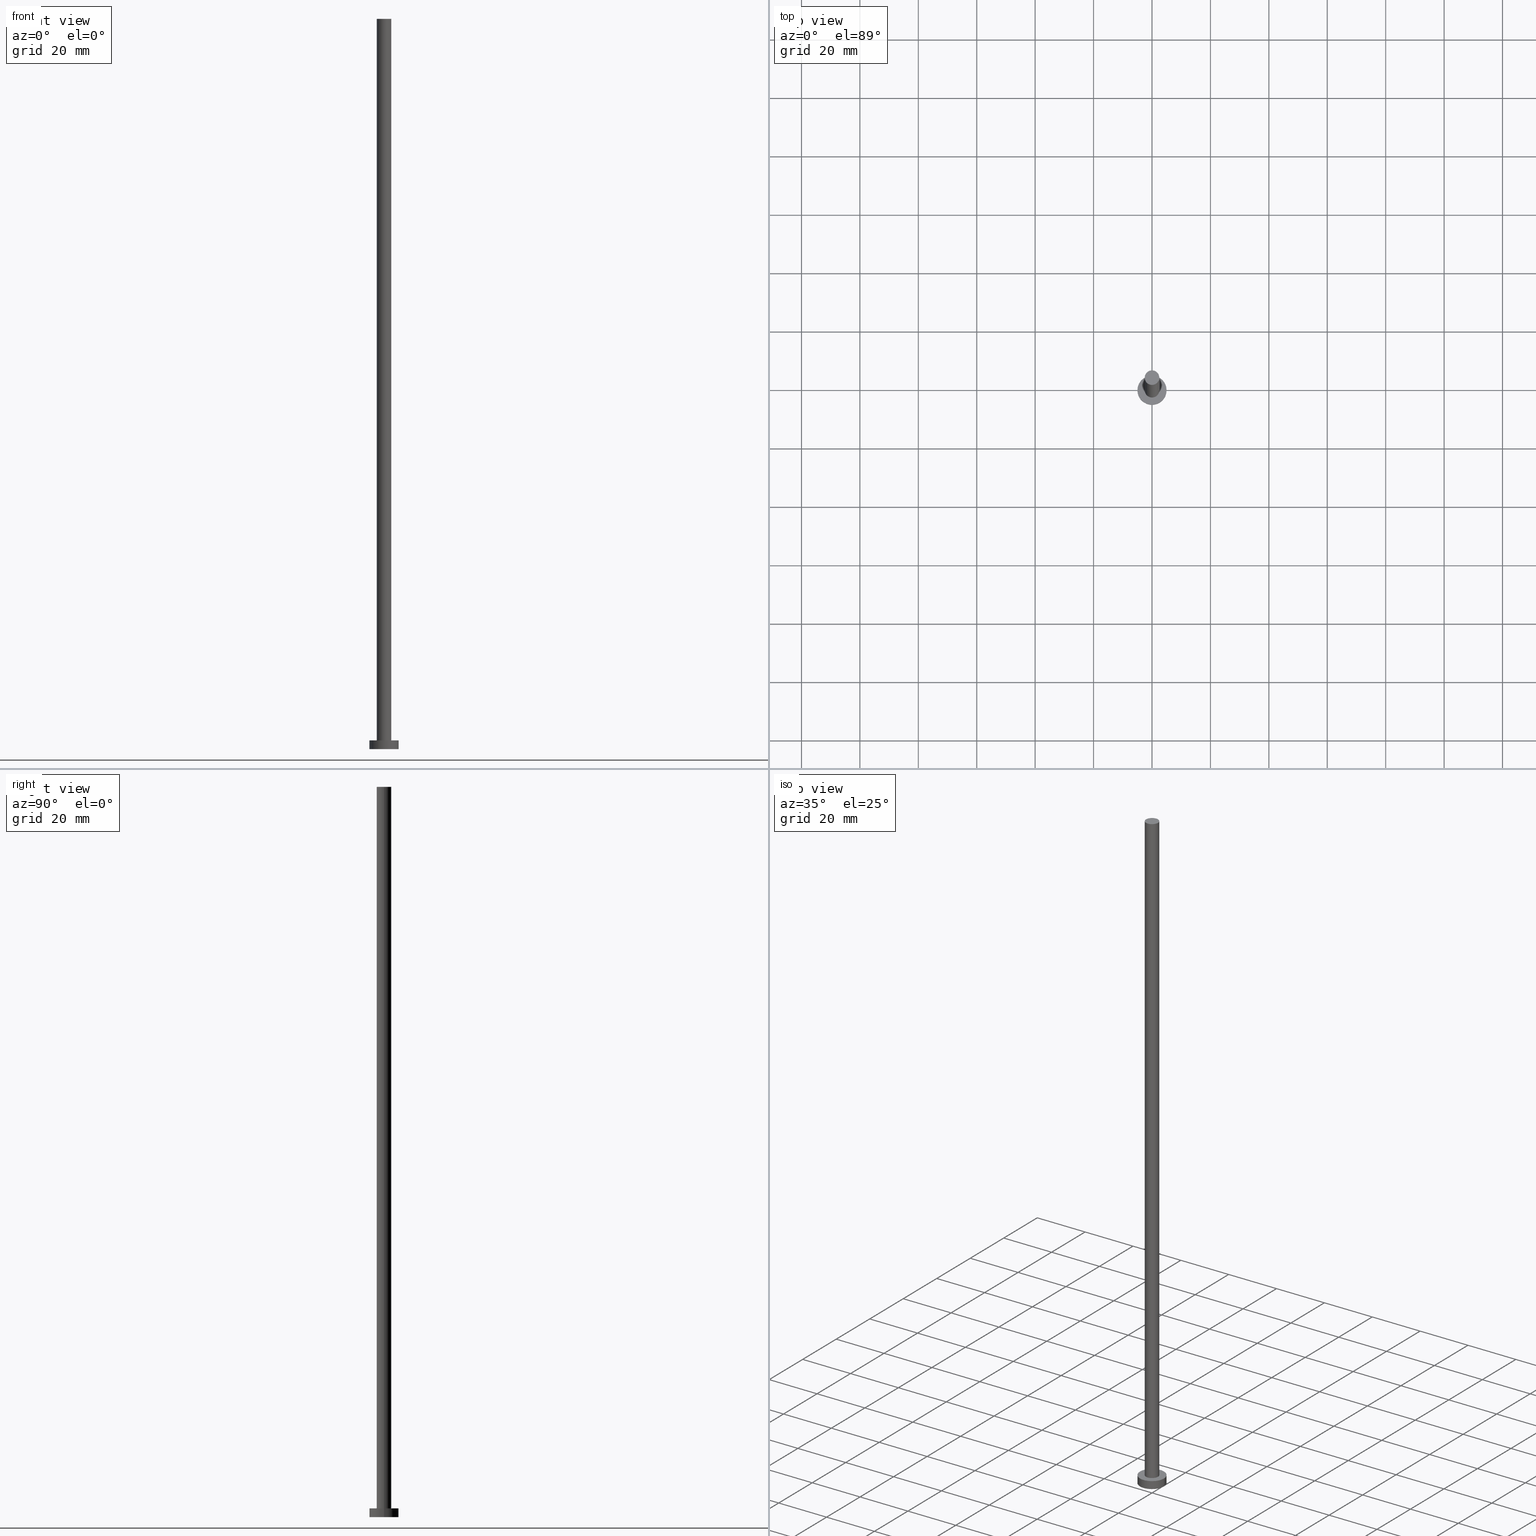
[diagram: canonical four-view strip — front | top / right | iso, engineering-drawing reading convention]
A machine part, canonical four-view strip (front | top / right | iso — engineering-drawing reading convention). The complete STEP part file that produces these views, byte-faithful:
ISO-10303-21;
HEADER;
FILE_DESCRIPTION (( 'STEP AP203' ),
    '1' );
FILE_NAME ('8118.STEP',
    '2023-02-13T13:26:06',
    ( '' ),
    ( '' ),
    'SwSTEP 2.0',
    'SolidWorks 2019',
    '' );
FILE_SCHEMA (( 'CONFIG_CONTROL_DESIGN' ));
ENDSEC;

DATA;
#1 = DIRECTION ( 'NONE',  ( -0.000000000000000000, -0.000000000000000000, -1.000000000000000000 ) ) ;
#2 = CARTESIAN_POINT ( 'NONE',  ( 0.000000000000000000, 0.000000000000000000, 3.000000000000000000 ) ) ;
#3 = FACE_OUTER_BOUND ( 'NONE', #27, .T. ) ;
#4 = DIRECTION ( 'NONE',  ( 1.000000000000000000, 0.000000000000000000, 0.000000000000000000 ) ) ;
#5 = EDGE_CURVE ( 'NONE', #228, #30, #32, .T. ) ;
#6 = PERSON_AND_ORGANIZATION ( #213, #133 ) ;
#7 = AXIS2_PLACEMENT_3D ( 'NONE', #176, #204, #21 ) ;
#8 = CALENDAR_DATE ( 2023, 13, 2 ) ;
#9 = ORIENTED_EDGE ( 'NONE', *, *, #242, .F. ) ;
#10 = APPROVAL_ROLE ( '' ) ;
#11 = EDGE_CURVE ( 'NONE', #211, #253, #171, .T. ) ;
#12 = DIRECTION ( 'NONE',  ( 0.000000000000000000, 0.000000000000000000, 1.000000000000000000 ) ) ;
#13 = PERSON_AND_ORGANIZATION_ROLE ( 'classification_officer' ) ;
#14 = CC_DESIGN_SECURITY_CLASSIFICATION ( #137, ( #181 ) ) ;
#15 = DIRECTION ( 'NONE',  ( 1.000000000000000000, 0.000000000000000000, 0.000000000000000000 ) ) ;
#16 = CARTESIAN_POINT ( 'NONE',  ( 0.000000000000000000, 0.000000000000000000, 250.0000000000000000 ) ) ;
#17 = CC_DESIGN_PERSON_AND_ORGANIZATION_ASSIGNMENT ( #209, #225, ( #234 ) ) ;
#18 = DIRECTION ( 'NONE',  ( -0.000000000000000000, -0.000000000000000000, -1.000000000000000000 ) ) ;
#19 = CARTESIAN_POINT ( 'NONE',  ( -5.000000000000000000, 0.000000000000000000, 3.000000000000000000 ) ) ;
#20 = DIRECTION ( 'NONE',  ( 1.000000000000000000, 0.000000000000000000, 0.000000000000000000 ) ) ;
#21 = DIRECTION ( 'NONE',  ( 1.000000000000000000, 0.000000000000000000, 0.000000000000000000 ) ) ;
#22 = AXIS2_PLACEMENT_3D ( 'NONE', #117, #140, #159 ) ;
#23 = DIRECTION ( 'NONE',  ( 0.000000000000000000, 0.000000000000000000, 1.000000000000000000 ) ) ;
#24 = APPROVAL_DATE_TIME ( #247, #91 ) ;
#25 = COORDINATED_UNIVERSAL_TIME_OFFSET ( 1, 0, .AHEAD. ) ;
#26 = CC_DESIGN_APPROVAL ( #72, ( #137 ) ) ;
#27 = EDGE_LOOP ( 'NONE', ( #69, #215, #145, #33 ) ) ;
#28 = ADVANCED_FACE ( 'NONE', ( #166 ), #71, .T. ) ;
#29 = DATE_TIME_ROLE ( 'classification_date' ) ;
#30 = VERTEX_POINT ( 'NONE', #252 ) ;
#31 = PERSON_AND_ORGANIZATION ( #213, #133 ) ;
#32 = CIRCLE ( 'NONE', #82, 2.500000000000000000 ) ;
#33 = ORIENTED_EDGE ( 'NONE', *, *, #5, .T. ) ;
#34 = ORIENTED_EDGE ( 'NONE', *, *, #205, .F. ) ;
#35 = LINE ( 'NONE', #111, #222 ) ;
#36 = CC_DESIGN_PERSON_AND_ORGANIZATION_ASSIGNMENT ( #106, #186, ( #181 ) ) ;
#37 = CARTESIAN_POINT ( 'NONE',  ( 0.000000000000000000, 0.000000000000000000, 3.000000000000000000 ) ) ;
#38 = APPROVAL_PERSON_ORGANIZATION ( #245, #91, #246 ) ;
#39 = FACE_OUTER_BOUND ( 'NONE', #81, .T. ) ;
#40 = CARTESIAN_POINT ( 'NONE',  ( -5.000000000000000000, 0.000000000000000000, 0.000000000000000000 ) ) ;
#41 = CARTESIAN_POINT ( 'NONE',  ( 0.000000000000000000, 0.000000000000000000, 3.000000000000000000 ) ) ;
#42 = CC_DESIGN_APPROVAL ( #91, ( #181 ) ) ;
#43 = CARTESIAN_POINT ( 'NONE',  ( 0.000000000000000000, 0.000000000000000000, 0.000000000000000000 ) ) ;
#44 = COORDINATED_UNIVERSAL_TIME_OFFSET ( 1, 0, .AHEAD. ) ;
#45 = DATE_AND_TIME ( #61, #65 ) ;
#46 = ORIENTED_EDGE ( 'NONE', *, *, #112, .F. ) ;
#47 = ADVANCED_FACE ( 'NONE', ( #66 ), #110, .T. ) ;
#48 = ORIENTED_EDGE ( 'NONE', *, *, #139, .F. ) ;
#49 = ORIENTED_EDGE ( 'NONE', *, *, #249, .F. ) ;
#50 = EDGE_CURVE ( 'NONE', #63, #51, #237, .T. ) ;
#51 = VERTEX_POINT ( 'NONE', #154 ) ;
#52 = AXIS2_PLACEMENT_3D ( 'NONE', #16, #94, #224 ) ;
#53 = DIRECTION ( 'NONE',  ( 0.000000000000000000, 0.000000000000000000, 1.000000000000000000 ) ) ;
#54 = DIRECTION ( 'NONE',  ( 1.000000000000000000, 0.000000000000000000, -0.000000000000000000 ) ) ;
#55 = DIRECTION ( 'NONE',  ( -0.000000000000000000, -0.000000000000000000, -1.000000000000000000 ) ) ;
#56 = CARTESIAN_POINT ( 'NONE',  ( 2.500000000000000000, 3.061616997868383141E-16, 250.0000000000000000 ) ) ;
#57 = PERSON_AND_ORGANIZATION_ROLE ( 'creator' ) ;
#58 = DATE_AND_TIME ( #126, #207 ) ;
#59 =( NAMED_UNIT ( * ) SI_UNIT ( $, .STERADIAN. ) SOLID_ANGLE_UNIT ( ) );
#60 = AXIS2_PLACEMENT_3D ( 'NONE', #88, #170, #84 ) ;
#61 = CALENDAR_DATE ( 2023, 13, 2 ) ;
#62 = CC_DESIGN_PERSON_AND_ORGANIZATION_ASSIGNMENT ( #124, #13, ( #137 ) ) ;
#63 = VERTEX_POINT ( 'NONE', #118 ) ;
#64 = APPROVAL_STATUS ( 'not_yet_approved' ) ;
#65 = LOCAL_TIME ( 14, 26, 6.000000000000000000, #44 ) ;
#66 = FACE_OUTER_BOUND ( 'NONE', #217, .T. ) ;
#67 = VERTEX_POINT ( 'NONE', #221 ) ;
#68 = APPLICATION_CONTEXT ( 'configuration controlled 3d designs of mechanical parts and assemblies' ) ;
#69 = ORIENTED_EDGE ( 'NONE', *, *, #142, .F. ) ;
#70 = AXIS2_PLACEMENT_3D ( 'NONE', #138, #243, #98 ) ;
#71 = PLANE ( 'NONE',  #96 ) ;
#72 = APPROVAL ( #64, 'NEUR�EN�' ) ;
#73 = LINE ( 'NONE', #19, #146 ) ;
#74 = DIRECTION ( 'NONE',  ( -1.000000000000000000, 0.000000000000000000, 0.000000000000000000 ) ) ;
#75 = DIRECTION ( 'NONE',  ( -0.000000000000000000, -0.000000000000000000, -1.000000000000000000 ) ) ;
#76 = LINE ( 'NONE', #56, #113 ) ;
#77 = FACE_OUTER_BOUND ( 'NONE', #191, .T. ) ;
#78 = AXIS2_PLACEMENT_3D ( 'NONE', #182, #1, #220 ) ;
#79 = LOCAL_TIME ( 14, 26, 6.000000000000000000, #25 ) ;
#80 = PERSON_AND_ORGANIZATION_ROLE ( 'design_supplier' ) ;
#81 = EDGE_LOOP ( 'NONE', ( #49, #9, #151, #149 ) ) ;
#82 = AXIS2_PLACEMENT_3D ( 'NONE', #128, #12, #15 ) ;
#83 = CALENDAR_DATE ( 2023, 13, 2 ) ;
#84 = DIRECTION ( 'NONE',  ( 1.000000000000000000, 0.000000000000000000, 0.000000000000000000 ) ) ;
#85 =( GEOMETRIC_REPRESENTATION_CONTEXT ( 3 ) GLOBAL_UNCERTAINTY_ASSIGNED_CONTEXT ( ( #92 ) ) GLOBAL_UNIT_ASSIGNED_CONTEXT ( ( #119, #210, #59 ) ) REPRESENTATION_CONTEXT ( 'NONE', 'WORKASPACE' ) );
#86 = CC_DESIGN_PERSON_AND_ORGANIZATION_ASSIGNMENT ( #6, #80, ( #181 ) ) ;
#87 = ORIENTED_EDGE ( 'NONE', *, *, #239, .T. ) ;
#88 = CARTESIAN_POINT ( 'NONE',  ( 0.000000000000000000, 0.000000000000000000, 0.000000000000000000 ) ) ;
#89 = CARTESIAN_POINT ( 'NONE',  ( 2.500000000000000000, 3.061616997868383141E-16, 250.0000000000000000 ) ) ;
#90 = AXIS2_PLACEMENT_3D ( 'NONE', #41, #23, #99 ) ;
#91 = APPROVAL ( #101, 'NEUR�EN�' ) ;
#92 = UNCERTAINTY_MEASURE_WITH_UNIT (LENGTH_MEASURE( 1.000000000000000082E-05 ), #119, 'distance_accuracy_value', 'NONE');
#93 = ADVANCED_FACE ( 'NONE', ( #115, #77 ), #135, .T. ) ;
#94 = DIRECTION ( 'NONE',  ( -0.000000000000000000, -0.000000000000000000, -1.000000000000000000 ) ) ;
#95 = FACE_OUTER_BOUND ( 'NONE', #230, .T. ) ;
#96 = AXIS2_PLACEMENT_3D ( 'NONE', #250, #152, #218 ) ;
#97 = ADVANCED_FACE ( 'NONE', ( #39 ), #160, .T. ) ;
#98 = DIRECTION ( 'NONE',  ( -1.000000000000000000, 0.000000000000000000, 0.000000000000000000 ) ) ;
#99 = DIRECTION ( 'NONE',  ( 1.000000000000000000, 0.000000000000000000, 0.000000000000000000 ) ) ;
#100 = AXIS2_PLACEMENT_3D ( 'NONE', #173, #75, #74 ) ;
#101 = APPROVAL_STATUS ( 'not_yet_approved' ) ;
#102 = LOCAL_TIME ( 14, 26, 6.000000000000000000, #163 ) ;
#103 = APPLICATION_PROTOCOL_DEFINITION ( 'international standard', 'config_control_design', 1994, #175 ) ;
#104 = ORIENTED_EDGE ( 'NONE', *, *, #139, .T. ) ;
#105 = ORIENTED_EDGE ( 'NONE', *, *, #11, .F. ) ;
#106 = PERSON_AND_ORGANIZATION ( #213, #133 ) ;
#107 = CC_DESIGN_DATE_AND_TIME_ASSIGNMENT ( #45, #29, ( #137 ) ) ;
#108 = EDGE_LOOP ( 'NONE', ( #196, #104 ) ) ;
#109 = ORIENTED_EDGE ( 'NONE', *, *, #50, .T. ) ;
#110 = CYLINDRICAL_SURFACE ( 'NONE', #52, 2.500000000000000000 ) ;
#111 = CARTESIAN_POINT ( 'NONE',  ( 5.000000000000000000, 6.123233995736766282E-16, 3.000000000000000000 ) ) ;
#112 = EDGE_CURVE ( 'NONE', #67, #228, #114, .T. ) ;
#113 = VECTOR ( 'NONE', #55, 1000.000000000000000 ) ;
#114 = LINE ( 'NONE', #244, #161 ) ;
#115 = FACE_BOUND ( 'NONE', #164, .T. ) ;
#116 = PRODUCT_DEFINITION ( 'NEZN�M�', '', #181, #148 ) ;
#117 = CARTESIAN_POINT ( 'NONE',  ( 0.000000000000000000, 0.000000000000000000, 250.0000000000000000 ) ) ;
#118 = CARTESIAN_POINT ( 'NONE',  ( 5.000000000000000000, 6.123233995736766282E-16, 3.000000000000000000 ) ) ;
#119 =( LENGTH_UNIT ( ) NAMED_UNIT ( * ) SI_UNIT ( .MILLI., .METRE. ) );
#120 = MECHANICAL_CONTEXT ( 'NONE', #175, 'mechanical' ) ;
#121 = CALENDAR_DATE ( 2023, 13, 2 ) ;
#122 = MANIFOLD_SOLID_BREP ( 'P�idat vysunut�m3', #178 ) ;
#123 = CIRCLE ( 'NONE', #90, 5.000000000000000000 ) ;
#124 = PERSON_AND_ORGANIZATION ( #213, #133 ) ;
#125 = PRODUCT_RELATED_PRODUCT_CATEGORY ( 'detail', '', ( #234 ) ) ;
#126 = CALENDAR_DATE ( 2023, 13, 2 ) ;
#127 = ORIENTED_EDGE ( 'NONE', *, *, #183, .F. ) ;
#128 = CARTESIAN_POINT ( 'NONE',  ( 0.000000000000000000, 0.000000000000000000, 3.000000000000000000 ) ) ;
#129 = ADVANCED_BREP_SHAPE_REPRESENTATION ( '8118', ( #122, #254 ), #85 ) ;
#130 = ORIENTED_EDGE ( 'NONE', *, *, #142, .T. ) ;
#131 = CYLINDRICAL_SURFACE ( 'NONE', #100, 2.500000000000000000 ) ;
#132 = CIRCLE ( 'NONE', #22, 2.500000000000000000 ) ;
#133 = ORGANIZATION ( 'NEUR�EN�', 'NEUR�EN�', '' ) ;
#134 = CC_DESIGN_PERSON_AND_ORGANIZATION_ASSIGNMENT ( #31, #57, ( #116 ) ) ;
#135 = PLANE ( 'NONE',  #214 ) ;
#136 = DIRECTION ( 'NONE',  ( 1.000000000000000000, 0.000000000000000000, 0.000000000000000000 ) ) ;
#137 = SECURITY_CLASSIFICATION ( '', '', #227 ) ;
#138 = CARTESIAN_POINT ( 'NONE',  ( 0.000000000000000000, 0.000000000000000000, 3.000000000000000000 ) ) ;
#139 = EDGE_CURVE ( 'NONE', #251, #67, #200, .T. ) ;
#140 = DIRECTION ( 'NONE',  ( 0.000000000000000000, 0.000000000000000000, 1.000000000000000000 ) ) ;
#141 = CARTESIAN_POINT ( 'NONE',  ( 5.000000000000000000, 6.123233995736766282E-16, 0.000000000000000000 ) ) ;
#142 = EDGE_CURVE ( 'NONE', #251, #30, #76, .T. ) ;
#143 = DIRECTION ( 'NONE',  ( 0.000000000000000000, 0.000000000000000000, 1.000000000000000000 ) ) ;
#144 = CC_DESIGN_DATE_AND_TIME_ASSIGNMENT ( #188, #165, ( #116 ) ) ;
#145 = ORIENTED_EDGE ( 'NONE', *, *, #112, .T. ) ;
#146 = VECTOR ( 'NONE', #198, 1000.000000000000000 ) ;
#147 = APPROVAL_STATUS ( 'not_yet_approved' ) ;
#148 = DESIGN_CONTEXT ( 'detailed design', #68, 'design' ) ;
#149 = ORIENTED_EDGE ( 'NONE', *, *, #11, .T. ) ;
#150 = ORIENTED_EDGE ( 'NONE', *, *, #183, .T. ) ;
#151 = ORIENTED_EDGE ( 'NONE', *, *, #205, .T. ) ;
#152 = DIRECTION ( 'NONE',  ( 0.000000000000000000, 0.000000000000000000, 1.000000000000000000 ) ) ;
#153 = PRODUCT_DEFINITION_SHAPE ( 'NONE', 'NONE',  #116 ) ;
#154 = CARTESIAN_POINT ( 'NONE',  ( -5.000000000000000000, 0.000000000000000000, 3.000000000000000000 ) ) ;
#155 = ADVANCED_FACE ( 'NONE', ( #3 ), #131, .T. ) ;
#156 = CARTESIAN_POINT ( 'NONE',  ( 0.000000000000000000, 0.000000000000000000, 3.000000000000000000 ) ) ;
#157 = ADVANCED_FACE ( 'NONE', ( #201 ), #203, .F. ) ;
#158 = CYLINDRICAL_SURFACE ( 'NONE', #70, 5.000000000000000000 ) ;
#159 = DIRECTION ( 'NONE',  ( 1.000000000000000000, 0.000000000000000000, 0.000000000000000000 ) ) ;
#160 = CYLINDRICAL_SURFACE ( 'NONE', #78, 5.000000000000000000 ) ;
#161 = VECTOR ( 'NONE', #241, 1000.000000000000000 ) ;
#162 = APPLICATION_PROTOCOL_DEFINITION ( 'international standard', 'config_control_design', 1994, #68 ) ;
#163 = COORDINATED_UNIVERSAL_TIME_OFFSET ( 1, 0, .AHEAD. ) ;
#164 = EDGE_LOOP ( 'NONE', ( #189, #127 ) ) ;
#165 = DATE_TIME_ROLE ( 'creation_date' ) ;
#166 = FACE_OUTER_BOUND ( 'NONE', #108, .T. ) ;
#167 = PERSON_AND_ORGANIZATION ( #213, #133 ) ;
#168 = ORIENTED_EDGE ( 'NONE', *, *, #239, .F. ) ;
#169 = SHAPE_DEFINITION_REPRESENTATION ( #153, #129 ) ;
#170 = DIRECTION ( 'NONE',  ( 0.000000000000000000, 0.000000000000000000, 1.000000000000000000 ) ) ;
#171 = CIRCLE ( 'NONE', #60, 5.000000000000000000 ) ;
#172 = DATE_AND_TIME ( #83, #238 ) ;
#173 = CARTESIAN_POINT ( 'NONE',  ( 0.000000000000000000, 0.000000000000000000, 250.0000000000000000 ) ) ;
#174 = AXIS2_PLACEMENT_3D ( 'NONE', #156, #53, #136 ) ;
#175 = APPLICATION_CONTEXT ( 'configuration controlled 3d designs of mechanical parts and assemblies' ) ;
#176 = CARTESIAN_POINT ( 'NONE',  ( 0.000000000000000000, 0.000000000000000000, 0.000000000000000000 ) ) ;
#177 = ADVANCED_FACE ( 'NONE', ( #95 ), #158, .T. ) ;
#178 = CLOSED_SHELL ( 'NONE', ( #47, #177, #97, #93, #157, #155, #28 ) ) ;
#179 = DIRECTION ( 'NONE',  ( 1.000000000000000000, 0.000000000000000000, -0.000000000000000000 ) ) ;
#180 = DIRECTION ( 'NONE',  ( 0.000000000000000000, 0.000000000000000000, 1.000000000000000000 ) ) ;
#181 = PRODUCT_DEFINITION_FORMATION_WITH_SPECIFIED_SOURCE ( 'LIBOVOLN�', '', #234, .NOT_KNOWN. ) ;
#182 = CARTESIAN_POINT ( 'NONE',  ( 0.000000000000000000, 0.000000000000000000, 3.000000000000000000 ) ) ;
#183 = EDGE_CURVE ( 'NONE', #30, #228, #199, .T. ) ;
#184 = APPROVAL_ROLE ( '' ) ;
#185 = AXIS2_PLACEMENT_3D ( 'NONE', #255, #206, #54 ) ;
#186 = PERSON_AND_ORGANIZATION_ROLE ( 'creator' ) ;
#187 = CC_DESIGN_APPROVAL ( #235, ( #116 ) ) ;
#188 = DATE_AND_TIME ( #121, #79 ) ;
#189 = ORIENTED_EDGE ( 'NONE', *, *, #5, .F. ) ;
#190 = PERSON_AND_ORGANIZATION ( #213, #133 ) ;
#191 = EDGE_LOOP ( 'NONE', ( #232, #109 ) ) ;
#192 = COORDINATED_UNIVERSAL_TIME_OFFSET ( 1, 0, .AHEAD. ) ;
#193 = ORIENTED_EDGE ( 'NONE', *, *, #249, .T. ) ;
#194 = APPROVAL_PERSON_ORGANIZATION ( #167, #235, #184 ) ;
#195 = APPROVAL_DATE_TIME ( #172, #72 ) ;
#196 = ORIENTED_EDGE ( 'NONE', *, *, #216, .T. ) ;
#197 = ORIENTED_EDGE ( 'NONE', *, *, #50, .F. ) ;
#198 = DIRECTION ( 'NONE',  ( -0.000000000000000000, -0.000000000000000000, -1.000000000000000000 ) ) ;
#199 = CIRCLE ( 'NONE', #248, 2.500000000000000000 ) ;
#200 = CIRCLE ( 'NONE', #231, 2.500000000000000000 ) ;
#201 = FACE_OUTER_BOUND ( 'NONE', #212, .T. ) ;
#202 = APPROVAL_PERSON_ORGANIZATION ( #190, #72, #10 ) ;
#203 = PLANE ( 'NONE',  #185 ) ;
#204 = DIRECTION ( 'NONE',  ( 0.000000000000000000, 0.000000000000000000, 1.000000000000000000 ) ) ;
#205 = EDGE_CURVE ( 'NONE', #51, #211, #73, .T. ) ;
#206 = DIRECTION ( 'NONE',  ( 0.000000000000000000, 0.000000000000000000, 1.000000000000000000 ) ) ;
#207 = LOCAL_TIME ( 14, 26, 6.000000000000000000, #229 ) ;
#208 = APPROVAL_DATE_TIME ( #58, #235 ) ;
#209 = PERSON_AND_ORGANIZATION ( #213, #133 ) ;
#210 =( NAMED_UNIT ( * ) PLANE_ANGLE_UNIT ( ) SI_UNIT ( $, .RADIAN. ) );
#211 = VERTEX_POINT ( 'NONE', #40 ) ;
#212 = EDGE_LOOP ( 'NONE', ( #105, #168 ) ) ;
#213 = PERSON ( 'NEUR�EN�', 'NEUR�EN�', 'NEUR�EN�', ('NEUR�EN�'), ('NEUR�EN�'), ('NEUR�EN�') ) ;
#214 = AXIS2_PLACEMENT_3D ( 'NONE', #2, #240, #179 ) ;
#215 = ORIENTED_EDGE ( 'NONE', *, *, #216, .F. ) ;
#216 = EDGE_CURVE ( 'NONE', #67, #251, #132, .T. ) ;
#217 = EDGE_LOOP ( 'NONE', ( #48, #130, #150, #46 ) ) ;
#218 = DIRECTION ( 'NONE',  ( 1.000000000000000000, 0.000000000000000000, -0.000000000000000000 ) ) ;
#219 = CARTESIAN_POINT ( 'NONE',  ( -2.500000000000000000, 0.000000000000000000, 3.000000000000000000 ) ) ;
#220 = DIRECTION ( 'NONE',  ( -1.000000000000000000, 0.000000000000000000, 0.000000000000000000 ) ) ;
#221 = CARTESIAN_POINT ( 'NONE',  ( -2.500000000000000000, 0.000000000000000000, 250.0000000000000000 ) ) ;
#222 = VECTOR ( 'NONE', #18, 1000.000000000000000 ) ;
#223 = DIRECTION ( 'NONE',  ( 0.000000000000000000, 0.000000000000000000, 1.000000000000000000 ) ) ;
#224 = DIRECTION ( 'NONE',  ( -1.000000000000000000, 0.000000000000000000, 0.000000000000000000 ) ) ;
#225 = PERSON_AND_ORGANIZATION_ROLE ( 'design_owner' ) ;
#226 = DIRECTION ( 'NONE',  ( 1.000000000000000000, 0.000000000000000000, 0.000000000000000000 ) ) ;
#227 = SECURITY_CLASSIFICATION_LEVEL ( 'unclassified' ) ;
#228 = VERTEX_POINT ( 'NONE', #219 ) ;
#229 = COORDINATED_UNIVERSAL_TIME_OFFSET ( 1, 0, .AHEAD. ) ;
#230 = EDGE_LOOP ( 'NONE', ( #197, #193, #87, #34 ) ) ;
#231 = AXIS2_PLACEMENT_3D ( 'NONE', #236, #180, #20 ) ;
#232 = ORIENTED_EDGE ( 'NONE', *, *, #242, .T. ) ;
#233 = CIRCLE ( 'NONE', #7, 5.000000000000000000 ) ;
#234 = PRODUCT ( '8118', '8118', '', ( #120 ) ) ;
#235 = APPROVAL ( #147, 'NEUR�EN�' ) ;
#236 = CARTESIAN_POINT ( 'NONE',  ( 0.000000000000000000, 0.000000000000000000, 250.0000000000000000 ) ) ;
#237 = CIRCLE ( 'NONE', #174, 5.000000000000000000 ) ;
#238 = LOCAL_TIME ( 14, 26, 6.000000000000000000, #192 ) ;
#239 = EDGE_CURVE ( 'NONE', #253, #211, #233, .T. ) ;
#240 = DIRECTION ( 'NONE',  ( 0.000000000000000000, 0.000000000000000000, 1.000000000000000000 ) ) ;
#241 = DIRECTION ( 'NONE',  ( -0.000000000000000000, -0.000000000000000000, -1.000000000000000000 ) ) ;
#242 = EDGE_CURVE ( 'NONE', #51, #63, #123, .T. ) ;
#243 = DIRECTION ( 'NONE',  ( -0.000000000000000000, -0.000000000000000000, -1.000000000000000000 ) ) ;
#244 = CARTESIAN_POINT ( 'NONE',  ( -2.500000000000000000, 0.000000000000000000, 250.0000000000000000 ) ) ;
#245 = PERSON_AND_ORGANIZATION ( #213, #133 ) ;
#246 = APPROVAL_ROLE ( '' ) ;
#247 = DATE_AND_TIME ( #8, #102 ) ;
#248 = AXIS2_PLACEMENT_3D ( 'NONE', #37, #223, #4 ) ;
#249 = EDGE_CURVE ( 'NONE', #63, #253, #35, .T. ) ;
#250 = CARTESIAN_POINT ( 'NONE',  ( 0.000000000000000000, 0.000000000000000000, 250.0000000000000000 ) ) ;
#251 = VERTEX_POINT ( 'NONE', #89 ) ;
#252 = CARTESIAN_POINT ( 'NONE',  ( 2.500000000000000000, 3.061616997868383141E-16, 3.000000000000000000 ) ) ;
#253 = VERTEX_POINT ( 'NONE', #141 ) ;
#254 = AXIS2_PLACEMENT_3D ( 'NONE', #43, #143, #226 ) ;
#255 = CARTESIAN_POINT ( 'NONE',  ( 0.000000000000000000, 0.000000000000000000, 0.000000000000000000 ) ) ;
ENDSEC;
END-ISO-10303-21;
